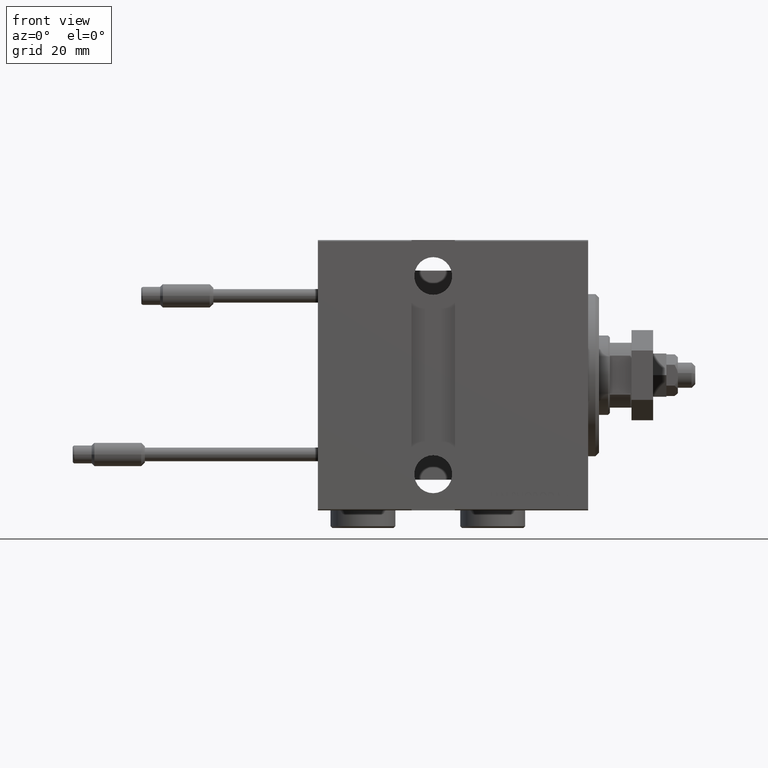
[diagram: clean part render]
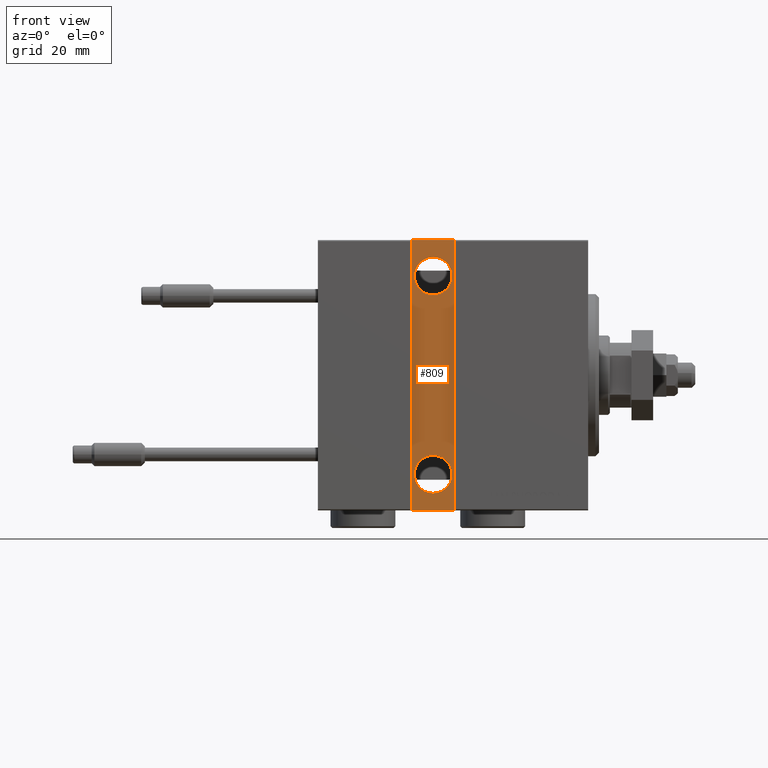
[diagram: same view with one face highlighted and labeled with its STEP entity id]
A machine part, front view. The second image highlights one B-rep face of the part: STEP entity #809.
In plain terms, the highlighted planar face has unit normal (0, 1, 0).
Its self-contained STEP definition (entity closure, byte-faithful):
#185 = DIRECTION ( 'NONE',  ( 0.000000000000000000, -1.000000000000000000, 0.000000000000000000 ) ) ;
#809 = ADVANCED_FACE ( 'NONE', ( #50967, #6967, #3320 ), #30524, .F. ) ;
#1757 = LINE ( 'NONE', #37007, #34565 ) ;
#1794 = EDGE_CURVE ( 'NONE', #15714, #22676, #27315, .T. ) ;
#3320 = FACE_OUTER_BOUND ( 'NONE', #26830, .T. ) ;
#6240 = EDGE_LOOP ( 'NONE', ( #49461, #41392 ) ) ;
#6572 = CARTESIAN_POINT ( 'NONE',  ( 37.00000000000000000, 24.50000000000000000, -37.50000000000000711 ) ) ;
#6967 = FACE_BOUND ( 'NONE', #6240, .T. ) ;
#7579 = ORIENTED_EDGE ( 'NONE', *, *, #46057, .T. ) ;
#8151 = VECTOR ( 'NONE', #21115, 1000.000000000000000 ) ;
#11605 = CARTESIAN_POINT ( 'NONE',  ( 43.00000000000001421, 24.50000000000000000, -27.50000000000000000 ) ) ;
#13713 = VERTEX_POINT ( 'NONE', #41236 ) ;
#14092 = DIRECTION ( 'NONE',  ( 1.850371707708595795E-16, 0.000000000000000000, 1.000000000000000000 ) ) ;
#15382 = EDGE_LOOP ( 'NONE', ( #19042, #7579 ) ) ;
#15496 = DIRECTION ( 'NONE',  ( 0.000000000000000000, -0.000000000000000000, -1.000000000000000000 ) ) ;
#15714 = VERTEX_POINT ( 'NONE', #34381 ) ;
#15898 = EDGE_CURVE ( 'NONE', #22676, #15714, #19477, .T. ) ;
#17622 = CARTESIAN_POINT ( 'NONE',  ( 49.00000000000000000, 24.50000000000000000, 37.49999999999993605 ) ) ;
#18396 = CARTESIAN_POINT ( 'NONE',  ( 43.00000000000001421, 24.50000000000000000, 27.50000000000000000 ) ) ;
#18739 = ORIENTED_EDGE ( 'NONE', *, *, #31629, .T. ) ;
#19042 = ORIENTED_EDGE ( 'NONE', *, *, #37174, .T. ) ;
#19477 = CIRCLE ( 'NONE', #36859, 5.249999999999994671 ) ;
#19891 = CARTESIAN_POINT ( 'NONE',  ( 43.00000000000001421, 24.50000000000000000, 27.50000000000000000 ) ) ;
#19923 = VECTOR ( 'NONE', #43722, 1000.000000000000000 ) ;
#21115 = DIRECTION ( 'NONE',  ( 1.000000000000000000, -0.000000000000000000, -0.000000000000000000 ) ) ;
#21589 = AXIS2_PLACEMENT_3D ( 'NONE', #11605, #42451, #38580 ) ;
#22676 = VERTEX_POINT ( 'NONE', #44885 ) ;
#23801 = ORIENTED_EDGE ( 'NONE', *, *, #31752, .T. ) ;
#24571 = VERTEX_POINT ( 'NONE', #17622 ) ;
#24877 = AXIS2_PLACEMENT_3D ( 'NONE', #18396, #48505, #34200 ) ;
#25472 = VERTEX_POINT ( 'NONE', #36055 ) ;
#25910 = CIRCLE ( 'NONE', #43264, 5.249999999999997335 ) ;
#25952 = EDGE_CURVE ( 'NONE', #37979, #13713, #1757, .T. ) ;
#26273 = LINE ( 'NONE', #6572, #48784 ) ;
#26830 = EDGE_LOOP ( 'NONE', ( #23801, #18739, #50979, #35219 ) ) ;
#27073 = CARTESIAN_POINT ( 'NONE',  ( 43.00000000000001421, 24.50000000000000000, 32.74999999999999289 ) ) ;
#27315 = CIRCLE ( 'NONE', #21589, 5.249999999999994671 ) ;
#28031 = CARTESIAN_POINT ( 'NONE',  ( 43.00000000000001421, 24.50000000000000000, 22.25000000000000355 ) ) ;
#28211 = CIRCLE ( 'NONE', #24877, 5.249999999999997335 ) ;
#30524 = PLANE ( 'NONE',  #35607 ) ;
#30550 = VERTEX_POINT ( 'NONE', #27073 ) ;
#31038 = CARTESIAN_POINT ( 'NONE',  ( 0.000000000000000000, 24.50000000000000000, 0.000000000000000000 ) ) ;
#31492 = DIRECTION ( 'NONE',  ( 0.000000000000000000, -1.000000000000000000, 0.000000000000000000 ) ) ;
#31629 = EDGE_CURVE ( 'NONE', #25472, #24571, #48543, .T. ) ;
#31752 = EDGE_CURVE ( 'NONE', #13713, #25472, #26273, .T. ) ;
#34200 = DIRECTION ( 'NONE',  ( 0.000000000000000000, 0.000000000000000000, -1.000000000000000000 ) ) ;
#34381 = CARTESIAN_POINT ( 'NONE',  ( 43.00000000000001421, 24.50000000000000000, -32.74999999999999289 ) ) ;
#34565 = VECTOR ( 'NONE', #48892, 1000.000000000000000 ) ;
#34617 = DIRECTION ( 'NONE',  ( 0.000000000000000000, 0.000000000000000000, -1.000000000000000000 ) ) ;
#35219 = ORIENTED_EDGE ( 'NONE', *, *, #25952, .T. ) ;
#35458 = LINE ( 'NONE', #43474, #19923 ) ;
#35607 = AXIS2_PLACEMENT_3D ( 'NONE', #31038, #50198, #15496 ) ;
#36055 = CARTESIAN_POINT ( 'NONE',  ( 37.00000000000001421, 24.50000000000000000, 37.49999999999993605 ) ) ;
#36306 = EDGE_CURVE ( 'NONE', #24571, #37979, #35458, .T. ) ;
#36859 = AXIS2_PLACEMENT_3D ( 'NONE', #47018, #31492, #34617 ) ;
#37007 = CARTESIAN_POINT ( 'NONE',  ( 48.99999999999999289, 24.50000000000000000, -37.50000000000000711 ) ) ;
#37174 = EDGE_CURVE ( 'NONE', #30550, #40495, #28211, .T. ) ;
#37979 = VERTEX_POINT ( 'NONE', #47028 ) ;
#38580 = DIRECTION ( 'NONE',  ( 0.000000000000000000, 0.000000000000000000, -1.000000000000000000 ) ) ;
#40495 = VERTEX_POINT ( 'NONE', #28031 ) ;
#41236 = CARTESIAN_POINT ( 'NONE',  ( 37.00000000000000000, 24.50000000000000000, -37.50000000000000711 ) ) ;
#41392 = ORIENTED_EDGE ( 'NONE', *, *, #1794, .T. ) ;
#42451 = DIRECTION ( 'NONE',  ( 0.000000000000000000, -1.000000000000000000, 0.000000000000000000 ) ) ;
#43264 = AXIS2_PLACEMENT_3D ( 'NONE', #19891, #185, #43696 ) ;
#43474 = CARTESIAN_POINT ( 'NONE',  ( 48.99999999999999289, 24.50000000000000000, -37.50000000000000711 ) ) ;
#43696 = DIRECTION ( 'NONE',  ( 0.000000000000000000, 0.000000000000000000, -1.000000000000000000 ) ) ;
#43722 = DIRECTION ( 'NONE',  ( -9.251858538542978977E-17, -0.000000000000000000, -1.000000000000000000 ) ) ;
#44666 = CARTESIAN_POINT ( 'NONE',  ( 49.00000000000000000, 24.50000000000000000, 37.49999999999993605 ) ) ;
#44885 = CARTESIAN_POINT ( 'NONE',  ( 43.00000000000001421, 24.50000000000000000, -22.25000000000000355 ) ) ;
#46057 = EDGE_CURVE ( 'NONE', #40495, #30550, #25910, .T. ) ;
#47018 = CARTESIAN_POINT ( 'NONE',  ( 43.00000000000001421, 24.50000000000000000, -27.50000000000000000 ) ) ;
#47028 = CARTESIAN_POINT ( 'NONE',  ( 49.00000000000000000, 24.50000000000000355, -37.50000000000000711 ) ) ;
#48505 = DIRECTION ( 'NONE',  ( 0.000000000000000000, -1.000000000000000000, 0.000000000000000000 ) ) ;
#48543 = LINE ( 'NONE', #44666, #8151 ) ;
#48784 = VECTOR ( 'NONE', #14092, 1000.000000000000000 ) ;
#48892 = DIRECTION ( 'NONE',  ( -1.000000000000000000, 0.000000000000000000, 0.000000000000000000 ) ) ;
#49461 = ORIENTED_EDGE ( 'NONE', *, *, #15898, .T. ) ;
#50198 = DIRECTION ( 'NONE',  ( 0.000000000000000000, -1.000000000000000000, 0.000000000000000000 ) ) ;
#50967 = FACE_BOUND ( 'NONE', #15382, .T. ) ;
#50979 = ORIENTED_EDGE ( 'NONE', *, *, #36306, .T. ) ;